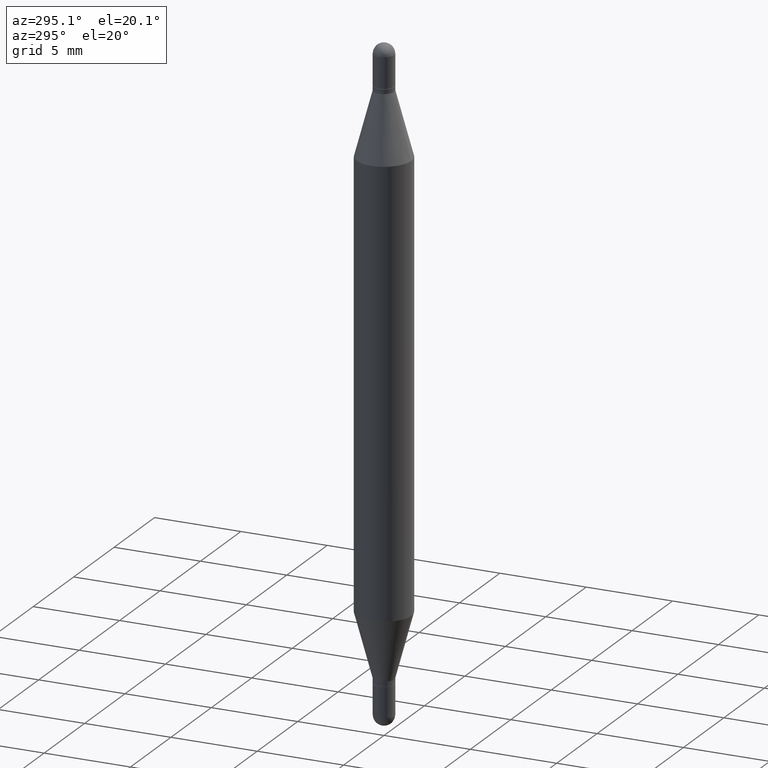
[diagram: clean part render]
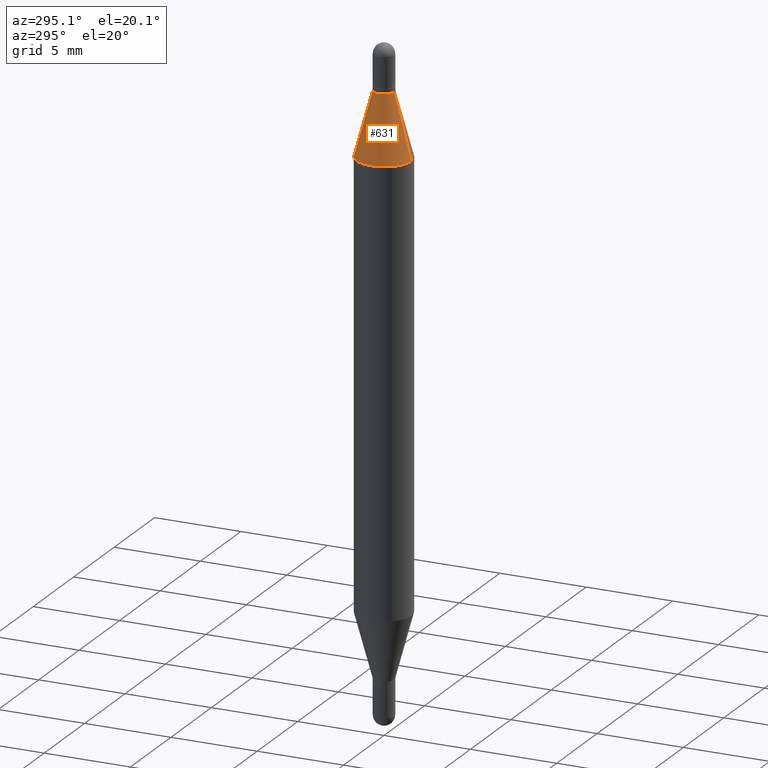
[diagram: same view with one face highlighted and labeled with its STEP entity id]
A machine part, auxiliary view. The second image highlights one B-rep face of the part: STEP entity #631.
In plain terms, the highlighted conical surface has half-angle 15 deg.
Its self-contained STEP definition (entity closure, byte-faithful):
#137 = ORIENTED_EDGE ( 'NONE', *, *, #613, .F. ) ;
#148 = CARTESIAN_POINT ( 'NONE',  ( 3.057189282543616555E-29, -8.783037710192168733E-16, -0.2497365840355639799 ) ) ;
#319 = CARTESIAN_POINT ( 'NONE',  ( 1.608786780477759945E-16, 0.02344999999999955106, -0.1039999999999995789 ) ) ;
#335 = EDGE_CURVE ( 'NONE', #537, #1017, #501, .T. ) ;
#340 = VECTOR ( 'NONE', #644, 39.37007874015748143 ) ;
#344 = CONICAL_SURFACE ( 'NONE', #1079, 0.02344999999999992230, 0.2617993877991502405 ) ;
#353 = CARTESIAN_POINT ( 'NONE',  ( 3.413549643967419566E-29, -3.712452041084765820E-16, -0.1039999999999994956 ) ) ;
#413 = ORIENTED_EDGE ( 'NONE', *, *, #891, .T. ) ;
#422 = CIRCLE ( 'NONE', #612, 0.02344999999999992230 ) ;
#439 = DIRECTION ( 'NONE',  ( -6.982962677686266711E-15, -1.000000000000000000, 3.640522379616567654E-15 ) ) ;
#466 = DIRECTION ( 'NONE',  ( 2.445236134647148401E-29, 3.479281268092587751E-15, 1.000000000000000000 ) ) ;
#473 = CARTESIAN_POINT ( 'NONE',  ( 4.287811248607511924E-16, 0.06249999999999911876, -0.2497365840355641742 ) ) ;
#482 = DIRECTION ( 'NONE',  ( 2.445236134647148401E-29, 3.479281268092587751E-15, 1.000000000000000000 ) ) ;
#497 = CARTESIAN_POINT ( 'NONE',  ( -1.637504747917082906E-16, -0.02345000000000029353, -0.1039999999999994124 ) ) ;
#501 = LINE ( 'NONE', #497, #1019 ) ;
#519 = VERTEX_POINT ( 'NONE', #473 ) ;
#529 = EDGE_CURVE ( 'NONE', #622, #519, #1088, .T. ) ;
#537 = VERTEX_POINT ( 'NONE', #1004 ) ;
#580 = CIRCLE ( 'NONE', #991, 0.06250000000000000000 ) ;
#588 = ORIENTED_EDGE ( 'NONE', *, *, #529, .T. ) ;
#612 = AXIS2_PLACEMENT_3D ( 'NONE', #901, #466, #802 ) ;
#613 = EDGE_CURVE ( 'NONE', #622, #537, #422, .T. ) ;
#622 = VERTEX_POINT ( 'NONE', #787 ) ;
#631 = ADVANCED_FACE ( 'NONE', ( #962 ), #344, .T. ) ;
#644 = DIRECTION ( 'NONE',  ( 1.775627540710964511E-15, 0.2588190451025181305, -0.9659258262890689783 ) ) ;
#655 = DIRECTION ( 'NONE',  ( -6.982962677686265922E-15, -1.000000000000000000, 3.278217592397115862E-15 ) ) ;
#678 = DIRECTION ( 'NONE',  ( -2.445236134647148401E-29, -3.479281268092587751E-15, -1.000000000000000000 ) ) ;
#787 = CARTESIAN_POINT ( 'NONE',  ( 1.608786780477761424E-16, 0.02344999999999955106, -0.1039999999999995789 ) ) ;
#802 = DIRECTION ( 'NONE',  ( -6.982962677686266711E-15, -1.000000000000000000, 3.640522379616567654E-15 ) ) ;
#806 = EDGE_LOOP ( 'NONE', ( #137, #588, #413, #1081 ) ) ;
#891 = EDGE_CURVE ( 'NONE', #519, #1017, #580, .T. ) ;
#901 = CARTESIAN_POINT ( 'NONE',  ( 3.413549643967419566E-29, -3.712452041084765820E-16, -0.1039999999999994956 ) ) ;
#962 = FACE_OUTER_BOUND ( 'NONE', #806, .T. ) ;
#991 = AXIS2_PLACEMENT_3D ( 'NONE', #148, #482, #655 ) ;
#1004 = CARTESIAN_POINT ( 'NONE',  ( -1.637504747917082906E-16, -0.02345000000000029353, -0.1039999999999994124 ) ) ;
#1013 = DIRECTION ( 'NONE',  ( -1.807323732225329745E-15, -0.2588190451025249028, -0.9659258262890670910 ) ) ;
#1017 = VERTEX_POINT ( 'NONE', #1045 ) ;
#1019 = VECTOR ( 'NONE', #1013, 39.37007874015748143 ) ;
#1045 = CARTESIAN_POINT ( 'NONE',  ( -4.364351673553611010E-16, -0.06250000000000087430, -0.2497365840355637856 ) ) ;
#1079 = AXIS2_PLACEMENT_3D ( 'NONE', #353, #678, #439 ) ;
#1081 = ORIENTED_EDGE ( 'NONE', *, *, #335, .F. ) ;
#1088 = LINE ( 'NONE', #319, #340 ) ;